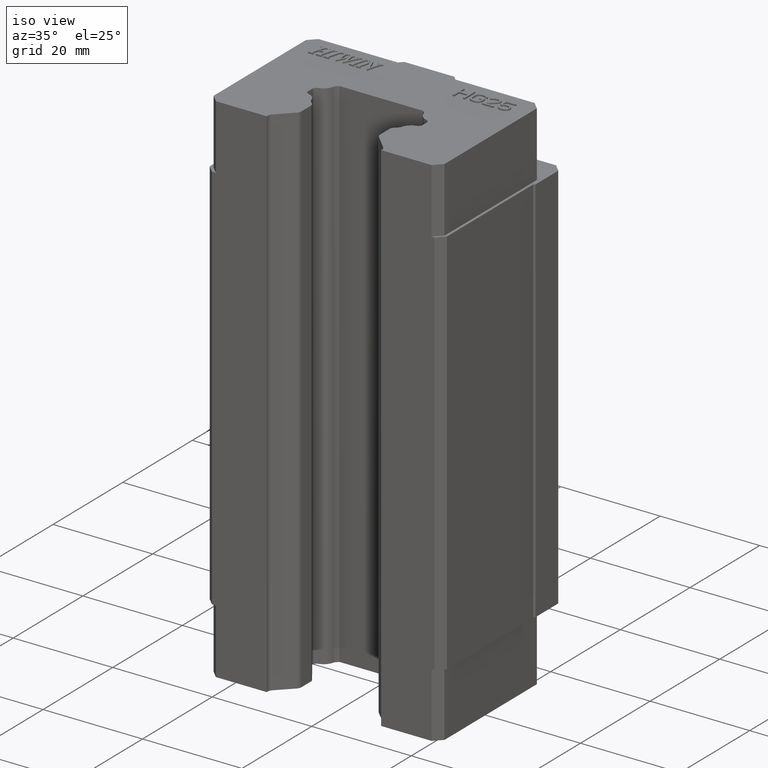
[diagram: clean part render]
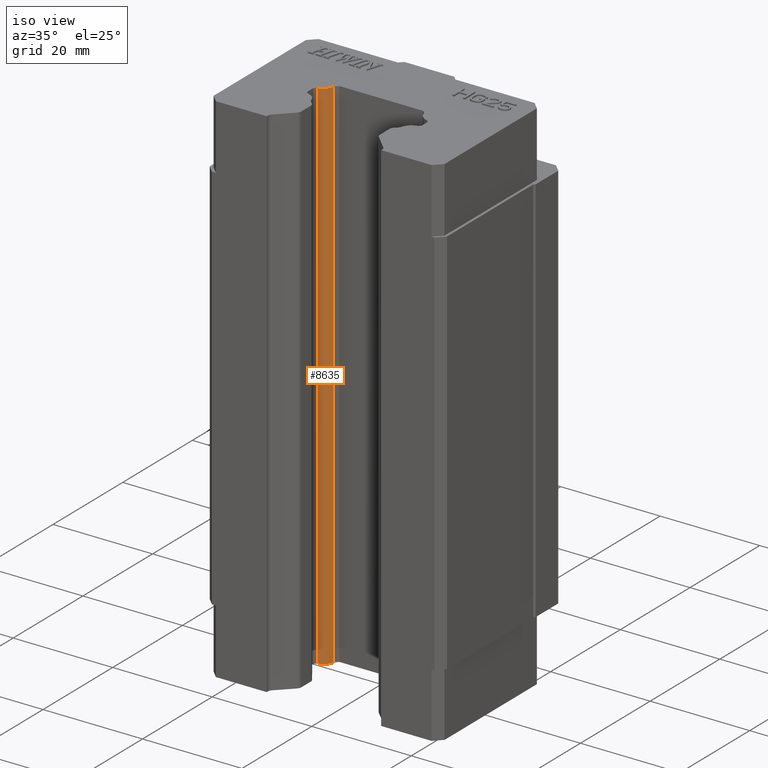
[diagram: same view with one face highlighted and labeled with its STEP entity id]
A machine part, iso view. The second image highlights one B-rep face of the part: STEP entity #8635.
In plain terms, the highlighted cylindrical surface (edge-blend (fillet) strip) has radius 2.43 mm, axis along (0, 0, 1).
Its self-contained STEP definition (entity closure, byte-faithful):
#294 = DIRECTION ( 'NONE',  ( 0.0000000000000000000, 0.0000000000000000000, -1.000000000000000000 ) ) ;
#295 = VECTOR ( 'NONE', #294, 1000.000000000000000 ) ;
#296 = CARTESIAN_POINT ( 'NONE',  ( -10.92831016059605000, -2.631505151938085000, -39.29999999999999700 ) ) ;
#297 = LINE ( 'NONE', #296, #295 ) ;
#338 = CARTESIAN_POINT ( 'NONE',  ( -10.92831016076961100, -2.631505151966951200, -52.29999999999999700 ) ) ;
#391 = CARTESIAN_POINT ( 'NONE',  ( -9.073084848032683800, -0.7762798392346448300, -52.29999999999999700 ) ) ;
#392 = DIRECTION ( 'NONE',  ( 0.0000000000000000000, 0.0000000000000000000, 1.000000000000000000 ) ) ;
#393 = VECTOR ( 'NONE', #392, 1000.000000000000000 ) ;
#394 = CARTESIAN_POINT ( 'NONE',  ( -9.073084848061261800, -0.7762798394156178400, -39.29999999999999700 ) ) ;
#395 = LINE ( 'NONE', #394, #393 ) ;
#400 = CARTESIAN_POINT ( 'NONE',  ( -9.073084848032683800, -0.7762798392346448300, 52.29999999999999000 ) ) ;
#417 = CARTESIAN_POINT ( 'NONE',  ( -10.92831016076961100, -2.631505151966951200, 52.29999999999999000 ) ) ;
#3646 = DIRECTION ( 'NONE',  ( 1.000000000000000000, 0.0000000000000000000, 0.0000000000000000000 ) ) ;
#3647 = DIRECTION ( 'NONE',  ( 0.0000000000000000000, 0.0000000000000000000, 1.000000000000000000 ) ) ;
#3648 = CARTESIAN_POINT ( 'NONE',  ( -11.44706701449000100, -0.2575229855059000300, 52.29999999999999000 ) ) ;
#3649 = AXIS2_PLACEMENT_3D ( 'NONE', #3648, #3647, #3646 ) ;
#3650 = CIRCLE ( 'NONE', #3649, 2.429999999999999700 ) ;
#3784 = DIRECTION ( 'NONE',  ( 1.000000000000000000, 0.0000000000000000000, 0.0000000000000000000 ) ) ;
#3785 = DIRECTION ( 'NONE',  ( 0.0000000000000000000, 0.0000000000000000000, 1.000000000000000000 ) ) ;
#3786 = AXIS2_PLACEMENT_3D ( 'NONE', #3792, #3785, #3784 ) ;
#3787 = CIRCLE ( 'NONE', #3786, 2.429999999999999700 ) ;
#3788 = DIRECTION ( 'NONE',  ( 1.000000000000000000, 0.0000000000000000000, 0.0000000000000000000 ) ) ;
#3789 = DIRECTION ( 'NONE',  ( 0.0000000000000000000, 0.0000000000000000000, 1.000000000000000000 ) ) ;
#3790 = CARTESIAN_POINT ( 'NONE',  ( -11.44706701449000100, -0.2575229855059000300, -39.29999999999999700 ) ) ;
#3791 = AXIS2_PLACEMENT_3D ( 'NONE', #3790, #3789, #3788 ) ;
#3792 = CARTESIAN_POINT ( 'NONE',  ( -11.44706701449000100, -0.2575229855059000300, -52.29999999999999700 ) ) ;
#3793 = CYLINDRICAL_SURFACE ( 'NONE', #3791, 2.429999999999999700 ) ;
#3794 = FACE_OUTER_BOUND ( 'NONE', #8636, .T. ) ;
#7234 = EDGE_CURVE ( 'NONE', #7303, #7280, #297, .T. ) ;
#7280 = VERTEX_POINT ( 'NONE', #338 ) ;
#7281 = VERTEX_POINT ( 'NONE', #400 ) ;
#7287 = EDGE_CURVE ( 'NONE', #7288, #7281, #395, .T. ) ;
#7288 = VERTEX_POINT ( 'NONE', #391 ) ;
#7303 = VERTEX_POINT ( 'NONE', #417 ) ;
#8564 = EDGE_CURVE ( 'NONE', #7303, #7281, #3650, .T. ) ;
#8565 = ORIENTED_EDGE ( 'NONE', *, *, #7234, .T. ) ;
#8635 = ADVANCED_FACE ( 'NONE', ( #3794 ), #3793, .T. ) ;
#8636 = EDGE_LOOP ( 'NONE', ( #8637, #8639, #8640, #8565 ) ) ;
#8637 = ORIENTED_EDGE ( 'NONE', *, *, #8638, .T. ) ;
#8638 = EDGE_CURVE ( 'NONE', #7280, #7288, #3787, .T. ) ;
#8639 = ORIENTED_EDGE ( 'NONE', *, *, #7287, .T. ) ;
#8640 = ORIENTED_EDGE ( 'NONE', *, *, #8564, .F. ) ;